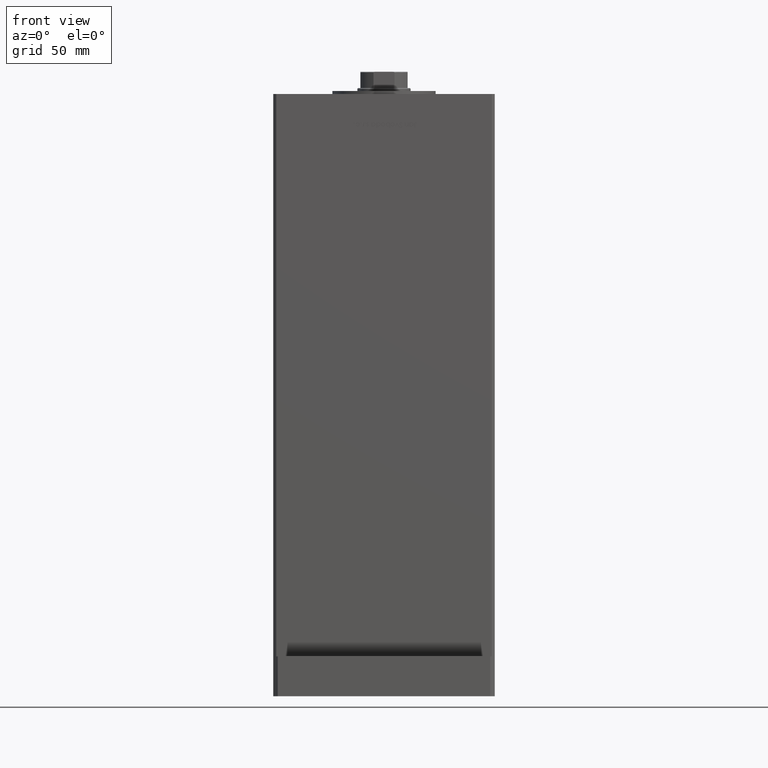
[diagram: clean part render]
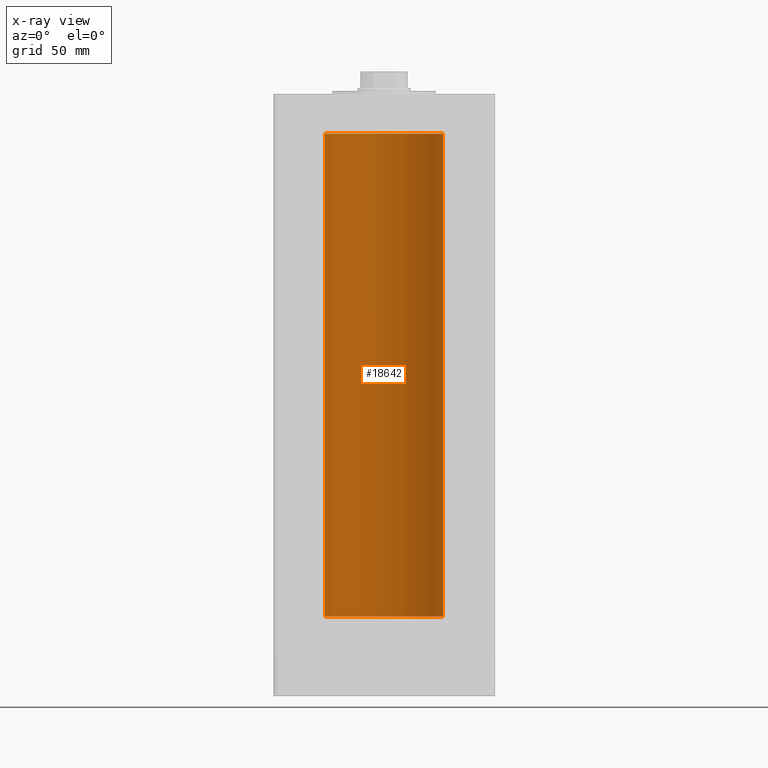
[diagram: x-ray — body ghosted, one internal face saturated and labeled with its STEP entity id]
A machine part, front view, then the same camera in x-ray: the body is ghosted and one INTERNAL B-rep face — a face not visible from any outside direction — is saturated and labeled: STEP entity #18642.
In plain terms, the highlighted cylindrical surface (partial cylindrical patch) has radius 40 mm, axis along (-0, -0, -1).
Its self-contained STEP definition (entity closure, byte-faithful):
#4315 = CARTESIAN_POINT ( 'NONE',  ( 0.000000000000000000, 0.000000000000000000, 0.000000000000000000 ) ) ;
#4609 = AXIS2_PLACEMENT_3D ( 'NONE', #41966, #29068, #16463 ) ;
#9479 = VECTOR ( 'NONE', #38105, 1000.000000000000000 ) ;
#9708 = VECTOR ( 'NONE', #30397, 1000.000000000000000 ) ;
#10273 = DIRECTION ( 'NONE',  ( -0.000000000000000000, 0.000000000000000000, 1.000000000000000000 ) ) ;
#10289 = VERTEX_POINT ( 'NONE', #34220 ) ;
#12659 = VERTEX_POINT ( 'NONE', #30484 ) ;
#16434 = VERTEX_POINT ( 'NONE', #17896 ) ;
#16463 = DIRECTION ( 'NONE',  ( -1.000000000000000000, 0.000000000000000000, 0.000000000000000000 ) ) ;
#16543 = CARTESIAN_POINT ( 'NONE',  ( -40.00000000000000000, 0.000000000000000000, 0.000000000000000000 ) ) ;
#17896 = CARTESIAN_POINT ( 'NONE',  ( 40.00000000000000000, 4.898587196589413026E-15, 0.000000000000000000 ) ) ;
#18244 = ORIENTED_EDGE ( 'NONE', *, *, #40205, .T. ) ;
#18642 = ADVANCED_FACE ( 'NONE', ( #29351 ), #20192, .F. ) ;
#19013 = EDGE_CURVE ( 'NONE', #16434, #37149, #19279, .T. ) ;
#19249 = ORIENTED_EDGE ( 'NONE', *, *, #46052, .T. ) ;
#19279 = CIRCLE ( 'NONE', #28444, 40.00000000000000000 ) ;
#20192 = CYLINDRICAL_SURFACE ( 'NONE', #4609, 40.00000000000000000 ) ;
#21186 = LINE ( 'NONE', #30055, #9479 ) ;
#21795 = DIRECTION ( 'NONE',  ( -0.000000000000000000, 0.000000000000000000, 1.000000000000000000 ) ) ;
#22071 = LINE ( 'NONE', #48410, #9708 ) ;
#22717 = CIRCLE ( 'NONE', #54753, 40.00000000000000000 ) ;
#25506 = ORIENTED_EDGE ( 'NONE', *, *, #19013, .F. ) ;
#26681 = DIRECTION ( 'NONE',  ( 1.000000000000000000, 0.000000000000000000, 0.000000000000000000 ) ) ;
#28444 = AXIS2_PLACEMENT_3D ( 'NONE', #4315, #21795, #39280 ) ;
#29068 = DIRECTION ( 'NONE',  ( -0.000000000000000000, -0.000000000000000000, -1.000000000000000000 ) ) ;
#29351 = FACE_OUTER_BOUND ( 'NONE', #44332, .T. ) ;
#30055 = CARTESIAN_POINT ( 'NONE',  ( 40.00000000000000000, 4.898587196589413026E-15, 327.0000000000000000 ) ) ;
#30194 = EDGE_CURVE ( 'NONE', #12659, #16434, #21186, .T. ) ;
#30397 = DIRECTION ( 'NONE',  ( -0.000000000000000000, -0.000000000000000000, -1.000000000000000000 ) ) ;
#30484 = CARTESIAN_POINT ( 'NONE',  ( 40.00000000000000000, 4.898587196589413026E-15, 327.0000000000000000 ) ) ;
#34220 = CARTESIAN_POINT ( 'NONE',  ( -40.00000000000000000, 0.000000000000000000, 327.0000000000000000 ) ) ;
#37149 = VERTEX_POINT ( 'NONE', #16543 ) ;
#38105 = DIRECTION ( 'NONE',  ( -0.000000000000000000, -0.000000000000000000, -1.000000000000000000 ) ) ;
#39280 = DIRECTION ( 'NONE',  ( 1.000000000000000000, 0.000000000000000000, 0.000000000000000000 ) ) ;
#40205 = EDGE_CURVE ( 'NONE', #10289, #37149, #22071, .T. ) ;
#41966 = CARTESIAN_POINT ( 'NONE',  ( 0.000000000000000000, 0.000000000000000000, 327.0000000000000000 ) ) ;
#44332 = EDGE_LOOP ( 'NONE', ( #56437, #19249, #18244, #25506 ) ) ;
#46052 = EDGE_CURVE ( 'NONE', #12659, #10289, #22717, .T. ) ;
#48410 = CARTESIAN_POINT ( 'NONE',  ( -40.00000000000000000, 0.000000000000000000, 327.0000000000000000 ) ) ;
#51890 = CARTESIAN_POINT ( 'NONE',  ( 0.000000000000000000, 0.000000000000000000, 327.0000000000000000 ) ) ;
#54753 = AXIS2_PLACEMENT_3D ( 'NONE', #51890, #10273, #26681 ) ;
#56437 = ORIENTED_EDGE ( 'NONE', *, *, #30194, .F. ) ;